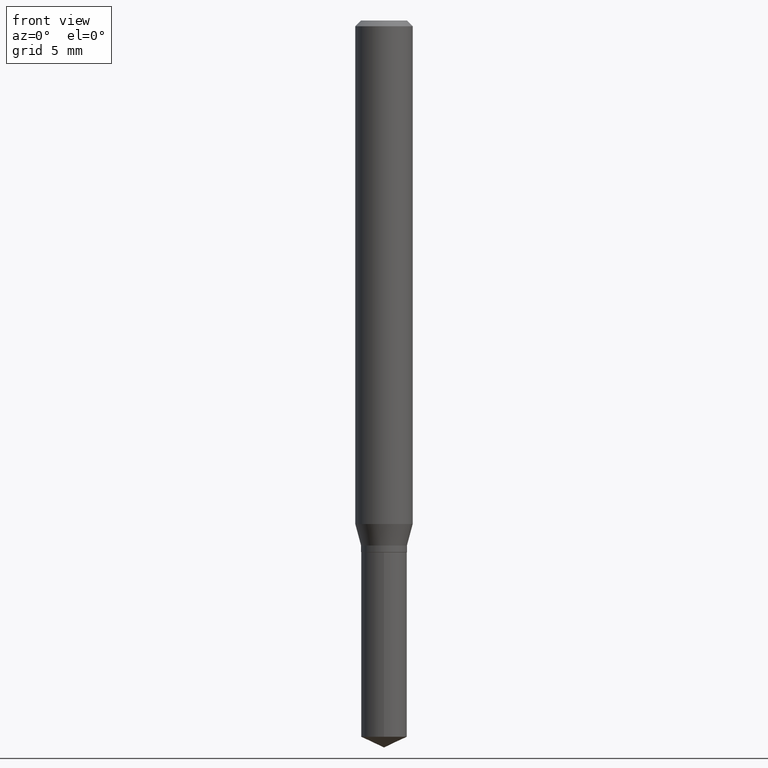
[diagram: clean part render]
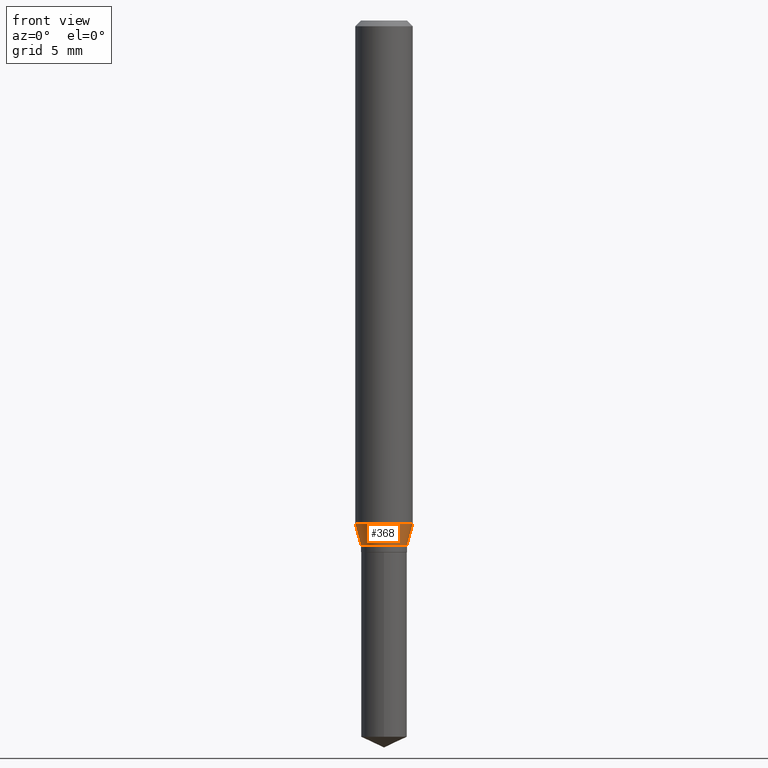
[diagram: same view with one face highlighted and labeled with its STEP entity id]
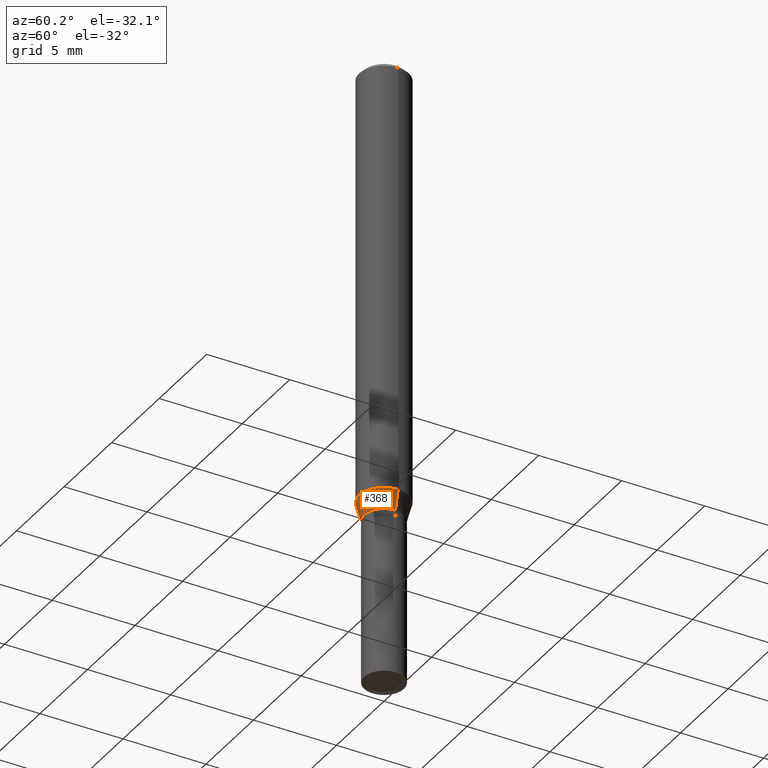
[diagram: same view with one face highlighted and labeled with its STEP entity id]
A machine part, front view. The second image highlights one B-rep face of the part: STEP entity #368.
A second angle (auxiliary view) of the same face is appended — the face is thin or edge-on in the first view.
In plain terms, the highlighted conical surface has half-angle 15 deg.
Its self-contained STEP definition (entity closure, byte-faithful):
#33 = FACE_OUTER_BOUND ( 'NONE', #382, .T. ) ;
#64 = VERTEX_POINT ( 'NONE', #453 ) ;
#68 = DIRECTION ( 'NONE',  ( -2.445468806185136597E-29, 3.491481338843145583E-15, 1.000000000000000000 ) ) ;
#96 = LINE ( 'NONE', #457, #376 ) ;
#104 = EDGE_CURVE ( 'NONE', #422, #64, #347, .T. ) ;
#112 = CARTESIAN_POINT ( 'NONE',  ( 2.641839951321803071E-29, -3.771847290352249705E-15, -1.080300000000000038 ) ) ;
#125 = DIRECTION ( 'NONE',  ( -0.2588190451025211281, 5.211531920934548675E-15, 0.9659258262890682012 ) ) ;
#133 = DIRECTION ( 'NONE',  ( 1.000000000000000000, -6.982962677686265133E-15, 0.000000000000000000 ) ) ;
#147 = CARTESIAN_POINT ( 'NONE',  ( -0.05905000000000013016, -3.198513253033061503E-15, -1.036261800470686723 ) ) ;
#152 = DIRECTION ( 'NONE',  ( 0.2588190451025211281, 1.565188264969623940E-15, 0.9659258262890682012 ) ) ;
#158 = AXIS2_PLACEMENT_3D ( 'NONE', #343, #380, #230 ) ;
#185 = ORIENTED_EDGE ( 'NONE', *, *, #362, .T. ) ;
#188 = CARTESIAN_POINT ( 'NONE',  ( 0.04724999999999999339, -4.101792276872925713E-15, -1.080300000000000038 ) ) ;
#195 = EDGE_CURVE ( 'NONE', #286, #422, #96, .T. ) ;
#211 = CONICAL_SURFACE ( 'NONE', #371, 0.04724999999999999339, 0.2617993877991497964 ) ;
#230 = DIRECTION ( 'NONE',  ( 1.000000000000000000, -6.982962677686266711E-15, 0.000000000000000000 ) ) ;
#246 = ORIENTED_EDGE ( 'NONE', *, *, #195, .F. ) ;
#255 = CARTESIAN_POINT ( 'NONE',  ( 0.04724999999999999339, -4.101792276872925713E-15, -1.080300000000000038 ) ) ;
#261 = VERTEX_POINT ( 'NONE', #255 ) ;
#286 = VERTEX_POINT ( 'NONE', #403 ) ;
#293 = CARTESIAN_POINT ( 'NONE',  ( 2.534145908092310761E-29, -3.618088738499401785E-15, -1.036261800470686723 ) ) ;
#329 = CIRCLE ( 'NONE', #158, 0.04724999999999999339 ) ;
#343 = CARTESIAN_POINT ( 'NONE',  ( 2.641839951321803071E-29, -3.771847290352249705E-15, -1.080300000000000038 ) ) ;
#347 = CIRCLE ( 'NONE', #446, 0.05905000000000013016 ) ;
#355 = ORIENTED_EDGE ( 'NONE', *, *, #454, .T. ) ;
#362 = EDGE_CURVE ( 'NONE', #261, #64, #486, .T. ) ;
#368 = ADVANCED_FACE ( 'NONE', ( #33 ), #211, .T. ) ;
#371 = AXIS2_PLACEMENT_3D ( 'NONE', #112, #68, #410 ) ;
#376 = VECTOR ( 'NONE', #125, 39.37007874015748143 ) ;
#380 = DIRECTION ( 'NONE',  ( -2.445468806185136597E-29, 3.491481338843145583E-15, 1.000000000000000000 ) ) ;
#382 = EDGE_LOOP ( 'NONE', ( #246, #355, #185, #464 ) ) ;
#403 = CARTESIAN_POINT ( 'NONE',  ( -0.04724999999999999339, -3.460032494876678049E-15, -1.080300000000000038 ) ) ;
#410 = DIRECTION ( 'NONE',  ( 1.000000000000000000, -6.982962677686266711E-15, 0.000000000000000000 ) ) ;
#422 = VERTEX_POINT ( 'NONE', #147 ) ;
#425 = DIRECTION ( 'NONE',  ( -2.445468806185136597E-29, 3.491481338843145583E-15, 1.000000000000000000 ) ) ;
#446 = AXIS2_PLACEMENT_3D ( 'NONE', #293, #425, #133 ) ;
#453 = CARTESIAN_POINT ( 'NONE',  ( 0.05905000000000013016, -4.030432684616776705E-15, -1.036261800470686723 ) ) ;
#454 = EDGE_CURVE ( 'NONE', #286, #261, #329, .T. ) ;
#457 = CARTESIAN_POINT ( 'NONE',  ( -0.04724999999999999339, -3.436115847705602267E-15, -1.080300000000000038 ) ) ;
#464 = ORIENTED_EDGE ( 'NONE', *, *, #104, .F. ) ;
#486 = LINE ( 'NONE', #188, #489 ) ;
#489 = VECTOR ( 'NONE', #152, 39.37007874015748143 ) ;